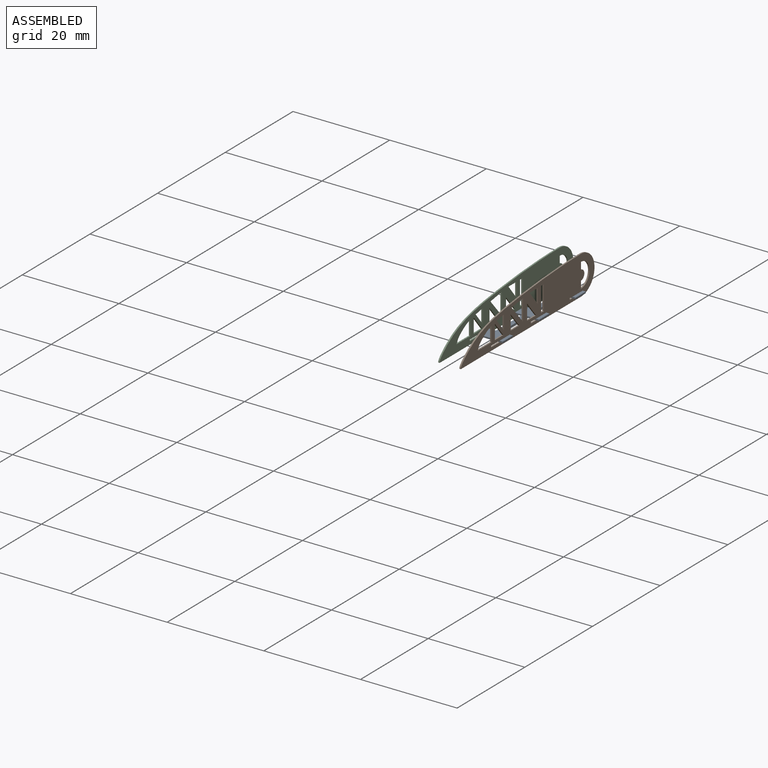
[diagram: assembled view]
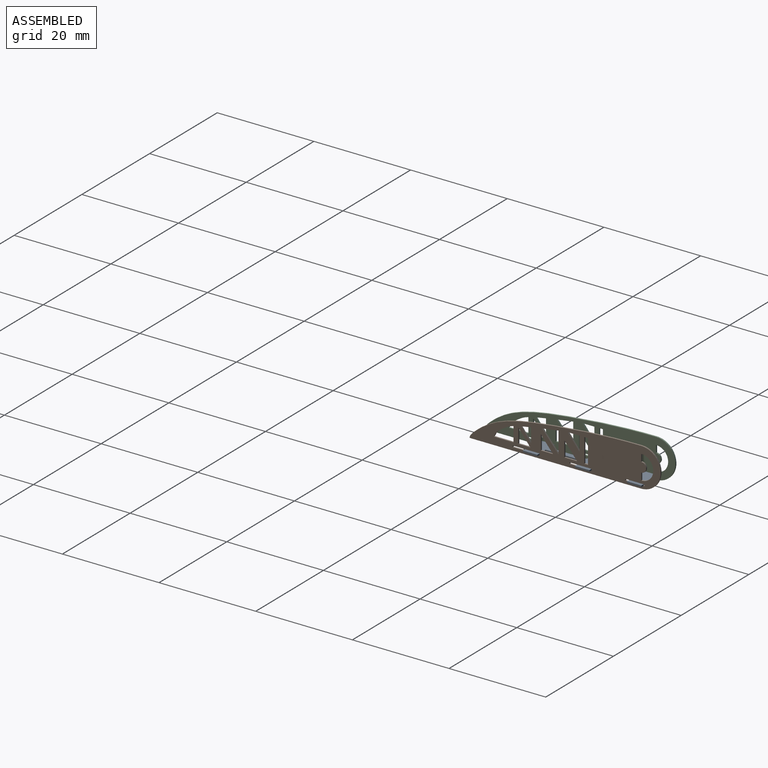
[diagram: assembled view, second angle]
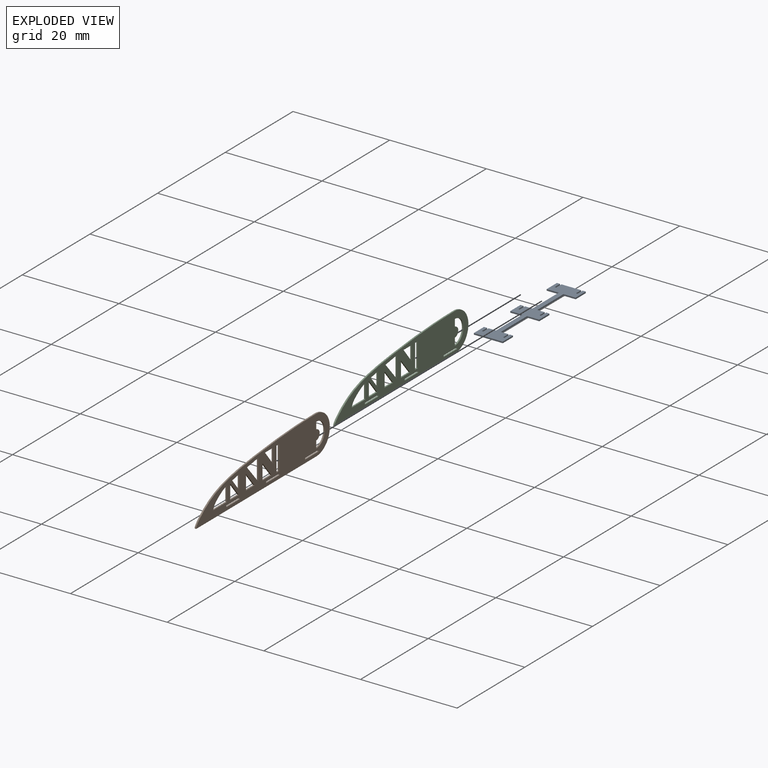
[diagram: exploded view]
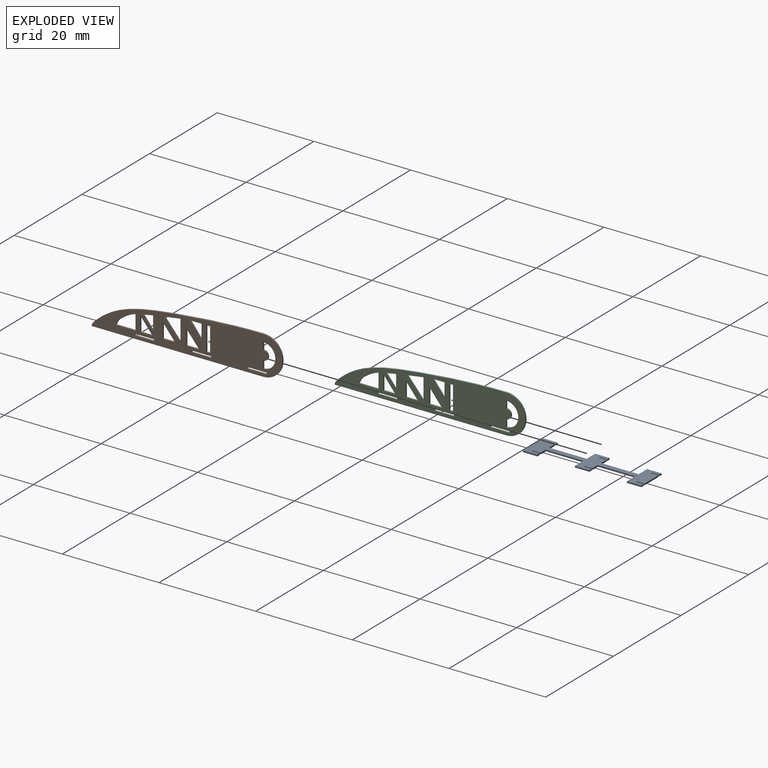
[diagram: exploded view, second angle]
ASSEMBLY  parts=3 mates=2
PART A: 46 faces, bbox 0.3x24.5x6 mm
  f0: plane 3x0.3mm, normal (0,0,1), area 0.9mm2, adj f1,f43,f44,f45
  f1: plane 6x0.3mm, normal (0,-1,0), area 1.8mm2, adj f0,f2,f44,f45
  f2: plane 3x0.3mm, normal (0,0,-1), area 0.9mm2, adj f1,f3,f44,f45
  f3: plane 0.66x0.3mm, normal (0,1,0), area 0.2mm2, adj f2,f4,f44,f45
  f4: plane 1.55x0.3mm, normal (0,0,1), area 0.5mm2, adj f3,f5,f44,f45
  f5: plane 0.3x0.3mm, normal (0,1,0), area 0.1mm2, adj f4,f6,f44,f45
  f6: plane 1.55x0.3mm, normal (0,0,-1), area 0.5mm2, adj f5,f7,f44,f45
  f7: plane 1.54x0.3mm, normal (0,1,0), area 0.5mm2, adj f6,f8,f44,f45
  f8: plane 7.76x0.3mm, normal (0,0,-1), area 2.3mm2, adj f7,f9,f44,f45
  f9: plane 2.5x0.3mm, normal (0,-1,0), area 0.8mm2, adj f8,f10,f44,f45
  f10: plane 3x0.3mm, normal (0,0,-1), area 0.9mm2, adj f9,f11,f44,f45
  f11: plane 0.66x0.3mm, normal (0,1,0), area 0.2mm2, adj f10,f12,f44,f45
  f12: plane 1.55x0.3mm, normal (0,0,1), area 0.5mm2, adj f11,f13,f44,f45
  f13: plane 0.3x0.3mm, normal (0,1,0), area 0.1mm2, adj f12,f14,f44,f45
  f14: plane 1.55x0.3mm, normal (0,0,-1), area 0.5mm2, adj f13,f15,f44,f45
  f15: plane 1.54x0.3mm, normal (0,1,0), area 0.5mm2, adj f14,f16,f44,f45
  f16: plane 7.76x0.3mm, normal (0,0,-1), area 2.3mm2, adj f15,f17,f44,f45
  f17: plane 2.5x0.3mm, normal (0,-1,0), area 0.8mm2, adj f16,f18,f44,f45
  f18: plane 3x0.3mm, normal (0,0,-1), area 0.9mm2, adj f17,f19,f44,f45
  f19: plane 0.66x0.3mm, normal (0,1,0), area 0.2mm2, adj f18,f20,f44,f45
  f20: plane 1.55x0.3mm, normal (0,0,1), area 0.5mm2, adj f19,f21,f44,f45
  f21: plane 0.3x0.3mm, normal (0,1,0), area 0.1mm2, adj f20,f22,f44,f45
  f22: plane 1.55x0.3mm, normal (0,0,-1), area 0.5mm2, adj f21,f23,f44,f45
  f23: plane 4.08x0.3mm, normal (0,1,0), area 1.2mm2, adj f22,f24,f44,f45
  f24: plane 1.55x0.3mm, normal (0,0,1), area 0.5mm2, adj f23,f25,f44,f45
  f25: plane 0.3x0.3mm, normal (0,1,0), area 0.1mm2, adj f24,f26,f44,f45
  f26: plane 1.55x0.3mm, normal (0,0,-1), area 0.5mm2, adj f25,f27,f44,f45
  f27: plane 0.66x0.3mm, normal (0,1,0), area 0.2mm2, adj f26,f28,f44,f45
  f28: plane 3x0.3mm, normal (0,0,1), area 0.9mm2, adj f27,f29,f44,f45
  f29: plane 2.5x0.3mm, normal (0,-1,0), area 0.7mm2, adj f28,f30,f44,f45
  f30: plane 7.76x0.3mm, normal (0,0,1), area 2.3mm2, adj f29,f31,f44,f45
  f31: plane 1.54x0.3mm, normal (0,1,0), area 0.5mm2, adj f30,f32,f44,f45
  f32: plane 1.55x0.3mm, normal (0,0,1), area 0.5mm2, adj f31,f33,f44,f45
  f33: plane 0.3x0.3mm, normal (0,1,0), area 0.1mm2, adj f32,f34,f44,f45
  f34: plane 1.55x0.3mm, normal (0,0,-1), area 0.5mm2, adj f33,f35,f44,f45
  f35: plane 0.66x0.3mm, normal (0,1,0), area 0.2mm2, adj f34,f36,f44,f45
  f36: plane 3x0.3mm, normal (0,0,1), area 0.9mm2, adj f35,f37,f44,f45
  f37: plane 2.5x0.3mm, normal (0,-1,0), area 0.7mm2, adj f36,f38,f44,f45
  f38: plane 7.76x0.3mm, normal (0,0,1), area 2.3mm2, adj f37,f39,f44,f45
  f39: plane 1.54x0.3mm, normal (0,1,0), area 0.5mm2, adj f38,f40,f44,f45
  f40: plane 1.55x0.3mm, normal (0,0,1), area 0.5mm2, adj f39,f41,f44,f45
  f41: plane 0.3x0.3mm, normal (0,1,0), area 0.1mm2, adj f40,f42,f44,f45
  f42: plane 1.55x0.3mm, normal (0,0,-1), area 0.5mm2, adj f41,f43,f44,f45
  f43: plane 0.66x0.3mm, normal (0,1,0), area 0.2mm2, adj f0,f42,f44,f45
  f44: plane 24.52x6mm, normal (1,0,0), area 66.7mm2, adj f0,f1,f2,f3,f4,f5,f6,f7
  f45: plane 24.52x6mm, normal (-1,0,0), area 66.7mm2, adj f0,f1,f2,f3,f4,f5,f6,f7
PART B: 47 faces, bbox 0.3x39.5x8 mm
  f0: plane 4x0.3mm, normal (0,0,-1), area 1.2mm2, adj f1,f44,f45,f46
  f1: plane 0.3x0.3mm, normal (0,-1,0), area 0.1mm2, adj f0,f2,f45,f46
  f2: plane 4x0.3mm, normal (0,0,1), area 1.2mm2, adj f1,f44,f45,f46
  f3: plane 2.47x0.3mm, normal (0,0,1), area 0.7mm2, adj f4,f32,f45,f46
  f4: plane 3.06x0.3mm, normal (0,1,0), area 0.9mm2, adj f3,f32,f45,f46
  f5: extruded ~4.06x3.06mm, area 1.6mm2, adj f6,f33,f45,f46
  f6: plane 3.06x0.3mm, normal (0,-1,0), area 0.9mm2, adj f5,f33,f45,f46
  f7: plane 2.5x0.3mm, normal (0,0,1), area 0.7mm2, adj f8,f34,f45,f46
  f8: plane 3.04x0.3mm, normal (0,1,0), area 0.9mm2, adj f7,f34,f45,f46
  f9: plane 2.63x0.3mm, normal (0,0,1), area 0.8mm2, adj f10,f35,f45,f46
  f10: plane 3.2x0.3mm, normal (0,1,0), area 1mm2, adj f9,f35,f45,f46
  f11: plane 3.02x2.4mm, normal (0,0.78,0.62), area 1.2mm2, adj f12,f36,f45,f46
  f12: plane 2.4x0.3mm, normal (0,0,-1), area 0.7mm2, adj f11,f36,f45,f46
  f13: plane 5x0.3mm, normal (0,1,0), area 1.5mm2, adj f14,f37,f45,f46
  f14: plane 0.76x0.3mm, normal (0,0,-1), area 0.2mm2, adj f13,f15,f45,f46
  f15: plane 5x0.3mm, normal (0,-1,0), area 1.5mm2, adj f14,f37,f45,f46
  f16: plane 0.3x0.3mm, normal (0,-1,0), area 0.1mm2, adj f17,f38,f45,f46
  f17: plane 4x0.3mm, normal (0,0,1), area 1.2mm2, adj f16,f18,f45,f46
  f18: plane 0.3x0.3mm, normal (0,1,0), area 0.1mm2, adj f17,f38,f45,f46
  f19: plane 0.3x0.3mm, normal (0,1,0), area 0.1mm2, adj f20,f39,f45,f46
  f20: plane 4x0.3mm, normal (0,0,-1), area 1.2mm2, adj f19,f21,f45,f46
  f21: plane 0.3x0.3mm, normal (0,-1,0), area 0.1mm2, adj f20,f39,f45,f46
  f22: extruded ~0.3x0.12mm, area 0mm2, adj f23,f40,f45,f46
  f23: extruded ~35.38x8mm, area 11.2mm2, adj f22,f24,f45,f46
  f24: plane 35.5x0.3mm, normal (0,0,-1), area 10.6mm2, adj f23,f40,f45,f46
  f25: plane 3.93x3.37mm, normal (0,0.76,0.65), area 1.6mm2, adj f26,f41,f45,f46
  f26: extruded ~3.37x0.51mm, area 1mm2, adj f25,f41,f45,f46
  f27: plane 1.5x0.3mm, normal (0,1,0), area 0.4mm2, adj f28,f42,f45,f46
  f28: cylinder r=2.5mm len=5mm, axis (-1,0,0), area 2.4mm2, adj f27,f29,f45,f46
  f29: plane 1.5x0.3mm, normal (0,1,0), area 0.5mm2, adj f28,f42,f45,f46
  f30: plane 2.6x2.08mm, normal (0,0.78,0.62), area 1mm2, adj f31,f43,f45,f46
  f31: extruded ~2.08x0.38mm, area 0.6mm2, adj f30,f43,f45,f46
  f32: plane 3.06x2.47mm, normal (0,-0.78,-0.63), area 1.2mm2, adj f3,f4,f45,f46
  f33: plane 4.06x0.3mm, normal (0,0,1), area 1.2mm2, adj f5,f6,f45,f46
  f34: plane 3.04x2.5mm, normal (0,-0.77,-0.64), area 1.2mm2, adj f7,f8,f45,f46
  f35: plane 3.2x2.63mm, normal (0,-0.77,-0.64), area 1.2mm2, adj f9,f10,f45,f46
  f36: plane 3.02x0.3mm, normal (0,-1,0), area 0.9mm2, adj f11,f12,f45,f46
  f37: plane 0.76x0.3mm, normal (0,0,1), area 0.2mm2, adj f13,f15,f45,f46
  f38: plane 4x0.3mm, normal (0,0,-1), area 1.2mm2, adj f16,f18,f45,f46
  f39: plane 4x0.3mm, normal (0,0,1), area 1.2mm2, adj f19,f21,f45,f46
  f40: cylinder r=4mm len=8mm, axis (-1,0,0), area 3.8mm2, adj f22,f24,f45,f46
  f41: plane 4.44x0.3mm, normal (0,-1,0), area 1.3mm2, adj f25,f26,f45,f46
  f42: cylinder r=1mm len=2mm, axis (-1,0,0), area 0.9mm2, adj f27,f29,f45,f46
  f43: plane 2.98x0.3mm, normal (0,-1,0), area 0.9mm2, adj f30,f31,f45,f46
  f44: plane 0.3x0.3mm, normal (0,1,0), area 0.1mm2, adj f0,f2,f45,f46
  f45: plane 39.5x8mm, normal (1,0,0), area 198.4mm2, adj f0,f1,f2,f3,f4,f5,f6,f7
  f46: plane 39.5x8mm, normal (-1,0,0), area 198.4mm2, adj f0,f1,f2,f3,f4,f5,f6,f7
PART C: same geometry as B
PLACE A rot(axis=(0,1,0),90deg) t=(6.5,2.05,9.69)mm
PLACE B t=(3.04,-9.42,8.74)mm fixed
PLACE C t=(-1.35,-9.42,8.74)mm
MATE fastened A.f5 <-> C.f16  axis (0,1,0) through (-1.2,3.51,9.54)mm
MATE fastened A.f41 <-> B.f16  axis (0,1,0) through (3.19,3.51,9.54)mm
